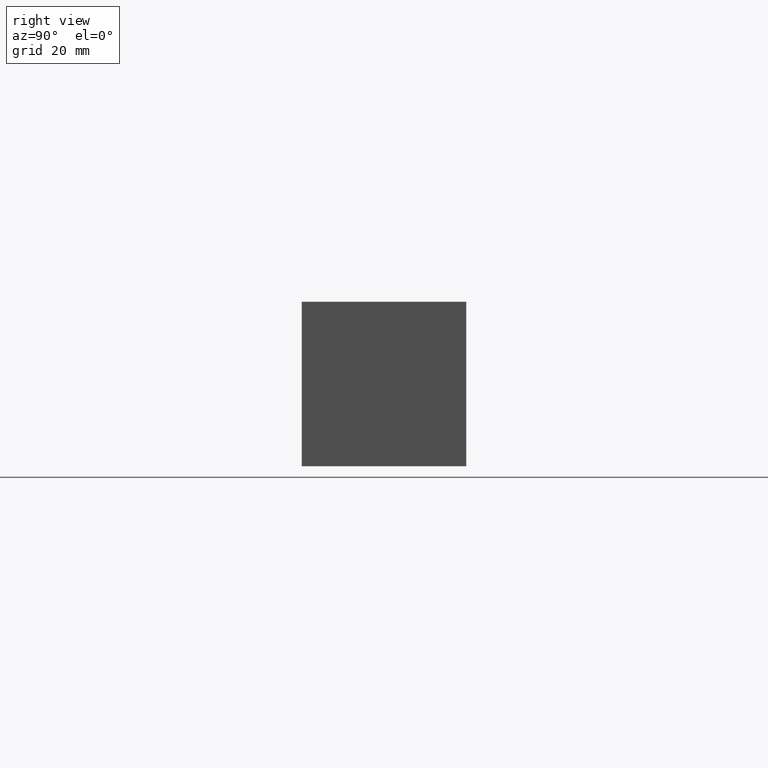
[diagram: clean part render]
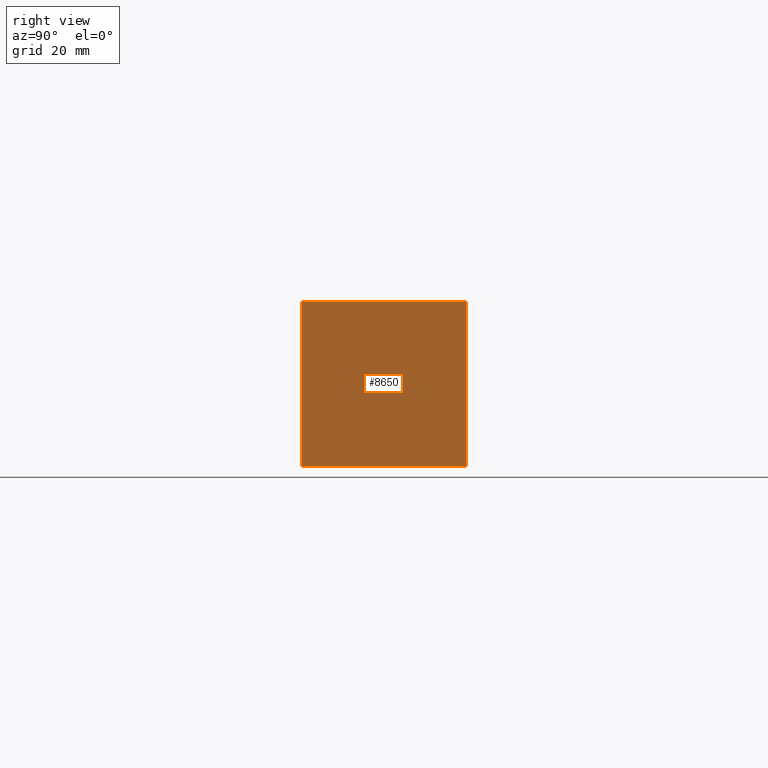
[diagram: same view with one face highlighted and labeled with its STEP entity id]
A machine part, right view. The second image highlights one B-rep face of the part: STEP entity #8650.
In plain terms, the highlighted planar face has unit normal (1, 0, 0).
Its self-contained STEP definition (entity closure, byte-faithful):
#1147=FACE_OUTER_BOUND('',#1652,.T.);
#1652=EDGE_LOOP('',(#7632,#7633,#7634,#7635));
#1947=LINE('',#13081,#2734);
#2451=LINE('',#14830,#3238);
#2452=LINE('',#14833,#3239);
#2453=LINE('',#14834,#3240);
#2734=VECTOR('',#9743,10.);
#3238=VECTOR('',#11341,10.);
#3239=VECTOR('',#11344,10.);
#3240=VECTOR('',#11345,10.);
#3519=VERTEX_POINT('',#13078);
#3520=VERTEX_POINT('',#13080);
#4034=VERTEX_POINT('',#14828);
#4035=VERTEX_POINT('',#14832);
#4451=EDGE_CURVE('',#3519,#3520,#1947,.T.);
#5243=EDGE_CURVE('',#4034,#3520,#2451,.T.);
#5244=EDGE_CURVE('',#4035,#4034,#2452,.T.);
#5245=EDGE_CURVE('',#4035,#3519,#2453,.T.);
#7632=ORIENTED_EDGE('',*,*,#5244,.T.);
#7633=ORIENTED_EDGE('',*,*,#5243,.T.);
#7634=ORIENTED_EDGE('',*,*,#4451,.F.);
#7635=ORIENTED_EDGE('',*,*,#5245,.F.);
#7915=PLANE('',#9296);
#8650=ADVANCED_FACE('',(#1147),#7915,.T.);
#9296=AXIS2_PLACEMENT_3D('',#14831,#11342,#11343);
#9743=DIRECTION('',(0.,1.,0.));
#11341=DIRECTION('',(0.,0.,1.));
#11342=DIRECTION('center_axis',(1.,0.,0.));
#11343=DIRECTION('ref_axis',(0.,1.,0.));
#11344=DIRECTION('',(0.,1.,0.));
#11345=DIRECTION('',(0.,0.,1.));
#13078=CARTESIAN_POINT('',(187.325,0.,44.45));
#13080=CARTESIAN_POINT('',(187.325,44.45,44.45));
#13081=CARTESIAN_POINT('',(187.325,0.,44.45));
#14828=CARTESIAN_POINT('',(187.325,44.45,0.));
#14830=CARTESIAN_POINT('',(187.325,44.45,0.));
#14831=CARTESIAN_POINT('Origin',(187.325,0.,0.));
#14832=CARTESIAN_POINT('',(187.325,0.,0.));
#14833=CARTESIAN_POINT('',(187.325,0.,0.));
#14834=CARTESIAN_POINT('',(187.325,0.,0.));